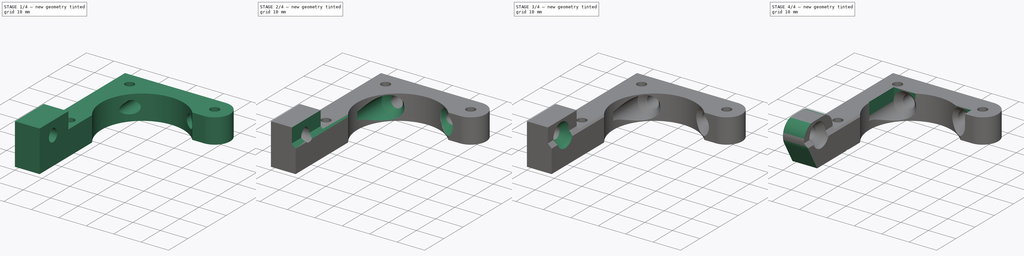
[diagram: build sequence overview — one tinted view per stage of 4, left to right]
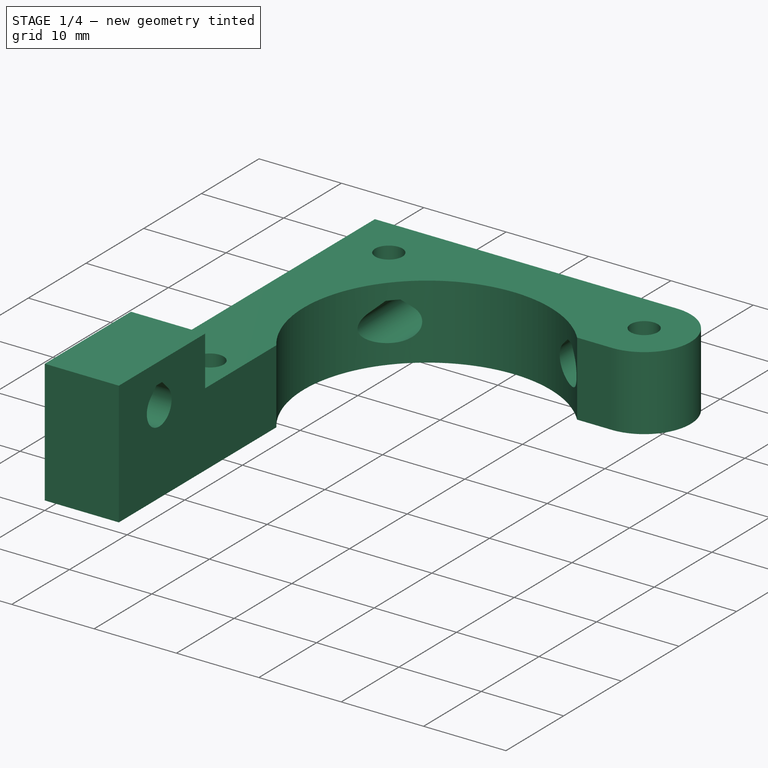
[diagram: stage 1 of 4 — iso view after this stage's code; geometry added in this stage tinted green]
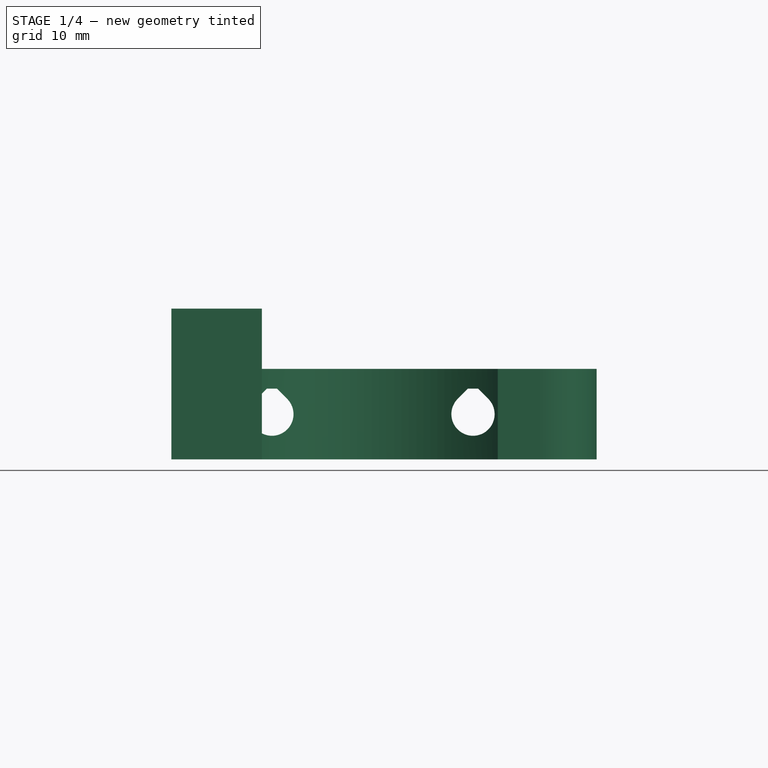
[diagram: stage 1 of 4 — front view after this stage's code; geometry added in this stage tinted green]
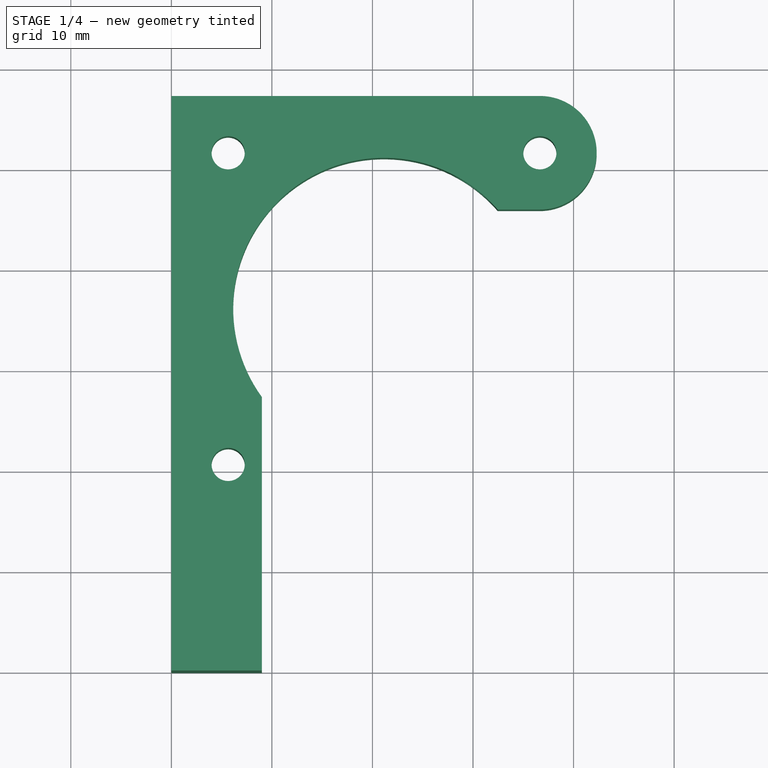
[diagram: stage 1 of 4 — top view after this stage's code; geometry added in this stage tinted green]
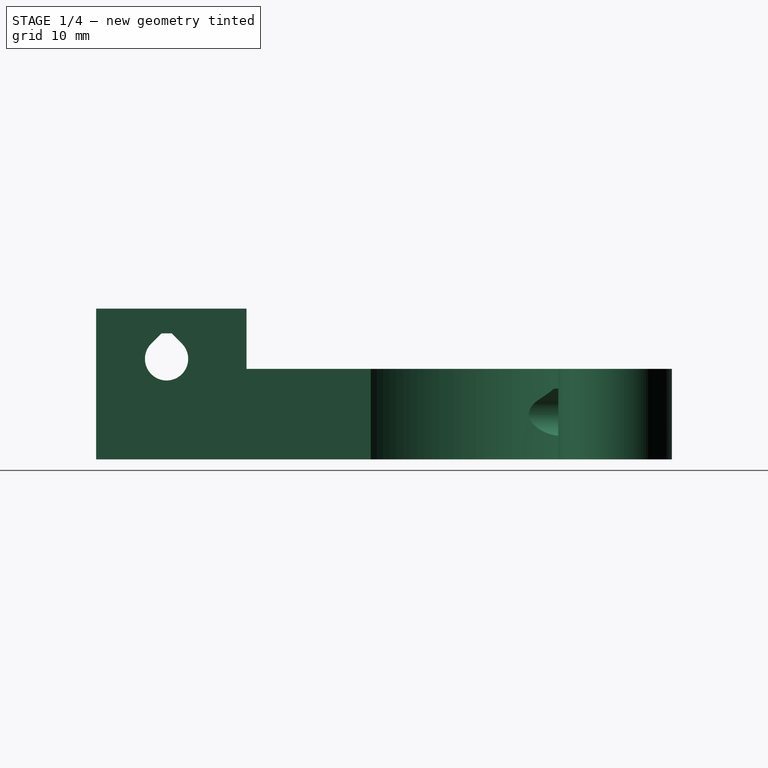
[diagram: stage 1 of 4 — right view after this stage's code; geometry added in this stage tinted green]
FCSTD DOCUMENT  (FreeCAD 0.18R13971 (Git))
Label: 03_469_z-motor-brace
License: All rights reserved
LicenseURL: http://en.wikipedia.org/wiki/All_rights_reserved
objects: Sketcher::SketchObject×28, PartDesign::SubtractiveLoft×8, PartDesign::Pocket×5, PartDesign::Pad×1, Spreadsheet::Sheet×1, PartDesign::Body×1
note: 57 computed .brp shape members not serialized (recipe doc carries the construction recipe); baked Part::Feature solids carry a one-line shape summary decoded from their .brp

FEATURE [Sketcher::SketchObject] Sketch
  MapMode = 5
  Support = -> [XY_Plane]
  expr: Constraints[26] = sheet1.YLegWidth
  expr: Constraints[25] = (sheet1.StepperWidth - sheet1.StepperBoltSpace) / 2
  expr: Constraints[22] = sheet1.M3Clearance / 2
  expr: Constraints[27] = sheet1.dy
  expr: Constraints[18] = sheet1.StepperBoltSpace
  expr: Constraints[40] = (sheet1.StepperWidth - sheet1.StepperBoltSpace) / 2
  sketch-geometry (17):
    g0: LineSegment StartX=0 StartY=0 StartZ=0 EndX=9 EndY=0 EndZ=0
    g1: LineSegment StartX=9 StartY=0 StartZ=0 EndX=9 EndY=27.3036 EndZ=0
    g2: LineSegment StartX=32.4627 StartY=45.95 StartZ=0 EndX=36.65 EndY=45.95 EndZ=0
    g3: LineSegment StartX=36.65 StartY=57.25 StartZ=0 EndX=0 EndY=57.25 EndZ=0
    g4: LineSegment StartX=0 StartY=57.25 StartZ=0 EndX=0 EndY=0 EndZ=0
    g5: Circle CenterX=5.65 CenterY=51.6 CenterZ=0 NormalX=0 NormalY=0 NormalZ=1 AngleXU=0 Radius=1.65
    g6: Circle CenterX=36.65 CenterY=51.6 CenterZ=0 NormalX=0 NormalY=0 NormalZ=1 AngleXU=0 Radius=1.65
    g7: Circle CenterX=5.65 CenterY=20.6 CenterZ=0 NormalX=0 NormalY=0 NormalZ=1 AngleXU=0 Radius=1.65
    g8: LineSegment [constr] StartX=5.65 StartY=51.6 StartZ=0 EndX=36.65 EndY=51.6 EndZ=0
    g9: LineSegment [constr] StartX=36.65 StartY=51.6 StartZ=0 EndX=36.65 EndY=20.6 EndZ=0
    g10: LineSegment [constr] StartX=36.65 StartY=20.6 StartZ=0 EndX=5.65 EndY=20.6 EndZ=0
    g11: LineSegment [constr] StartX=5.65 StartY=20.6 StartZ=0 EndX=5.65 EndY=51.6 EndZ=0
    g12: LineSegment [constr] StartX=21.15 StartY=51.6 StartZ=0 EndX=21.15 EndY=20.6 EndZ=0
    g13: LineSegment [constr] StartX=5.65 StartY=36.1 StartZ=0 EndX=36.65 EndY=36.1 EndZ=0
    g14: GeomPoint X=21.15 Y=36.1 Z=0
    g15: ArcOfCircle CenterX=21.15 CenterY=36.1 CenterZ=0 NormalX=0 NormalY=0 NormalZ=1 AngleXU=0 Radius=15 StartAngle=0.71639 EndAngle=3.76824
    g16: ArcOfCircle CenterX=36.65 CenterY=51.6 CenterZ=0 NormalX=0 NormalY=0 NormalZ=1 AngleXU=0 Radius=5.65 StartAngle=4.71239 EndAngle=7.85398
  constraints (44):
    c: Coincident(g0,g1)
    c: Coincident(g3,g4)
    c: Coincident(g0,g4)
    c: Coincident(g0,g-1)
    c: Vertical(g4)
    c: Vertical(g1)
    c: Horizontal(g0)
    c: Horizontal(g2)
    c: Horizontal(g3)
    c: Coincident(g8,g9)
    c: Coincident(g9,g10)
    c: Coincident(g10,g11)
    c: Coincident(g11,g8)
    c: Horizontal(g8)
    c: Horizontal(g10)
    c: Vertical(g9)
    c: Vertical(g11)
    c: Equal(g11,g8)
    c: Distance(g8) = 31
    c: Coincident(g8,g6)
    c: Coincident(g5,g8)
    c: Coincident(g7,g10)
    c: Radius(g7) = 1.65
    c: Equal(g7,g5)
    c: Equal(g7,g6)
    c: Distance(g5,g4) = 5.65
    c: Distance(g0) = 9
    c: Distance(g4) = 57.25
    c: Symmetric(g7,g5,g13)
    c: Symmetric(g5,g6,g12)
    c: PointOnObject(g13,g11)
    c: PointOnObject(g13,g9)
    c: PointOnObject(g12,g8)
    c: PointOnObject(g12,g10)
    c: PointOnObject(g14,g13)
    c: PointOnObject(g14,g12)
    c: Coincident(g14,g15)
    c: Coincident(g1,g15)
    c: Coincident(g2,g15)
    c: Radius(g15) = 15
    c: Distance(g6,g3) = 5.65
    c: Tangent(g3,g16) = -1.5708
    c: Tangent(g2,g16) = -1.5708
    c: Coincident(g16,g6)
FEATURE [PartDesign::Pad] Pad
  Length = 15
  Length2 = 100
  Profile = -> Sketch
  Type = 0
  expr: Length = sheet1.dz
FEATURE [Sketcher::SketchObject] Sketch001
  AttachmentOffset = pos=(0,0,-36.3) rot=(0,0,1;0rad)
  MapMode = 5
  Placement = pos=(0,36.3,4e-12) rot=(1,0,0;1.5708rad)
  Support = -> [XZ_Plane]
  expr: Constraints[23] = sheet1.ZPostBoltsZ
  expr: Constraints[21] = sheet1.ZPostBoltsSpaceX
  expr: Constraints[22] = sheet1.ZPostBoltsX
  expr: Constraints[7] = 4.2999999999999998 / 2
  sketch-geometry (9):
    g0: ArcOfCircle CenterX=10 CenterY=4.5 CenterZ=0 NormalX=0 NormalY=0 NormalZ=1 AngleXU=0 Radius=2.15 StartAngle=2.35619 EndAngle=7.06858
    g1: ArcOfCircle CenterX=30 CenterY=4.5 CenterZ=0 NormalX=0 NormalY=0 NormalZ=1 AngleXU=0 Radius=2.15 StartAngle=2.35619 EndAngle=7.06858
    g2: LineSegment [constr] StartX=10 StartY=4.5 StartZ=0 EndX=30 EndY=4.5 EndZ=0
    g3: LineSegment StartX=8.47972 StartY=6.02028 StartZ=0 EndX=9.5 EndY=7.04056 EndZ=0
    g4: LineSegment StartX=9.5 StartY=7.04056 StartZ=0 EndX=10.5 EndY=7.04056 EndZ=0
    g5: LineSegment StartX=10.5 StartY=7.04056 StartZ=0 EndX=11.5203 EndY=6.02028 EndZ=0
    g6: LineSegment StartX=28.4797 StartY=6.02028 StartZ=0 EndX=29.5 EndY=7.04056 EndZ=0
    g7: LineSegment StartX=29.5 StartY=7.04056 StartZ=0 EndX=30.5 EndY=7.04056 EndZ=0
    g8: LineSegment StartX=30.5 StartY=7.04056 StartZ=0 EndX=31.5203 EndY=6.02028 EndZ=0
  constraints (24):
    c: Horizontal(g2)
    c: Coincident(g0,g2)
    c: Coincident(g1,g2)
    c: Coincident(g3,g4)
    c: Coincident(g4,g5)
    c: Coincident(g6,g7)
    c: Coincident(g7,g8)
    c: Radius(g0) = 2.15
    c: Equal(g0,g1)
    c: Horizontal(g4)
    c: Horizontal(g7)
    c: Equal(g4,g7)
    c: Distance(g4) = 1
    c: Equal(g3,g5)
    c: Equal(g5,g6)
    c: Equal(g6,g8)
    c: Tangent(g0,g3) = 1.5708
    c: Tangent(g0,g5) = 1.5708
    c: Tangent(g1,g6) = 1.5708
    c: Tangent(g1,g8) = 1.5708
    c: Angle(g3,g4) = 2.35619
    c: Distance(g2) = 20
    c: DistanceX(g-2,g0) = 10
    c: DistanceY(g-1,g0) = 4.5
FEATURE [PartDesign::Pocket] Pocket  label="ZPostBoltHoles"
  BaseFeature = -> Pad
  Length = 5
  Length2 = 100
  Profile = -> Sketch001
  Type = 1
FEATURE [Sketcher::SketchObject] Sketch002
  AttachmentOffset = pos=(0,0,9) rot=(0,0,1;0rad)
  MapMode = 5
  Placement = pos=(0,0,9) rot=(0,0,1;0rad)
  Support = -> [XY_Plane]
  expr: Constraints[26] = sheet1.StepperWidth
  expr: Constraints[10] = sheet1.StepperBoltSpace
  expr: Constraints[8] = sheet1.StepperBoltX
  expr: Constraints[11] = sheet1.dy - (sheet1.StepperWidth - sheet1.StepperBoltSpace) / 2
  sketch-geometry (10):
    g0: LineSegment [constr] StartX=6 StartY=51.6 StartZ=0 EndX=37 EndY=51.6 EndZ=0
    g1: LineSegment [constr] StartX=37 StartY=51.6 StartZ=0 EndX=37 EndY=20.6 EndZ=0
    g2: LineSegment [constr] StartX=37 StartY=20.6 StartZ=0 EndX=6 EndY=20.6 EndZ=0
    g3: LineSegment [constr] StartX=6 StartY=20.6 StartZ=0 EndX=6 EndY=51.6 EndZ=0
    g4: LineSegment [constr] StartX=21.5 StartY=51.6 StartZ=0 EndX=21.5 EndY=20.6 EndZ=0
    g5: LineSegment [constr] StartX=6 StartY=36.1 StartZ=0 EndX=37 EndY=36.1 EndZ=0
    g6: LineSegment StartX=0 StartY=57.25 StartZ=0 EndX=43 EndY=57.25 EndZ=0
    g7: LineSegment StartX=43 StartY=57.25 StartZ=0 EndX=43 EndY=14.95 EndZ=0
    g8: LineSegment StartX=43 StartY=14.95 StartZ=0 EndX=0 EndY=14.95 EndZ=0
    g9: LineSegment StartX=0 StartY=14.95 StartZ=0 EndX=0 EndY=57.25 EndZ=0
  constraints (28):
    c: Coincident(g0,g1)
    c: Coincident(g1,g2)
    c: Coincident(g2,g3)
    c: Coincident(g3,g0)
    c: Horizontal(g0)
    c: Horizontal(g2)
    c: Vertical(g1)
    c: Vertical(g3)
    c: DistanceX(g-2,g0) = 6
    c: Equal(g0,g3)
    c: Distance(g1) = 31
    c: DistanceY(g-1,g0) = 51.6
    c: Symmetric(g2,g0,g5)
    c: Symmetric(g0,g0,g4)
    c: PointOnObject(g5,g3)
    c: PointOnObject(g4,g0)
    c: PointOnObject(g5,g1)
    c: PointOnObject(g4,g2)
    c: Coincident(g6,g7)
    c: Coincident(g7,g8)
    c: Coincident(g8,g9)
    c: Coincident(g9,g6)
    c: Horizontal(g8)
    c: Vertical(g9)
    c: Symmetric(g6,g6,g4)
    c: Symmetric(g6,g7,g5)
    c: Distance(g7) = 42.3
    c: PointOnObject(g6,g-2)
FEATURE [PartDesign::Pocket] Pocket001  label="MotorFaceRecess"
  BaseFeature = -> Pocket
  Length = 5
  Length2 = 100
  Profile = -> Sketch002
  Reversed = true
  Type = 1
FEATURE [Sketcher::SketchObject] Sketch003
  MapMode = 5
  Placement = pos=(0,0,0) rot=(0.57735,0.57735,0.57735;2.0944rad)
  Support = -> [YZ_Plane]
  expr: Constraints[8] = sheet1.YRailBoltZ
  expr: Constraints[9] = sheet1.YRailBoltY
  expr: Constraints[10] = sheet1.M4Clearance / 2
  sketch-geometry (4):
    g0: ArcOfCircle CenterX=7 CenterY=10 CenterZ=0 NormalX=0 NormalY=0 NormalZ=1 AngleXU=0 Radius=2.15 StartAngle=2.35619 EndAngle=7.06858
    g1: LineSegment StartX=5.47972 StartY=11.5203 StartZ=0 EndX=6.5 EndY=12.5406 EndZ=0
    g2: LineSegment StartX=6.5 StartY=12.5406 StartZ=0 EndX=7.5 EndY=12.5406 EndZ=0
    g3: LineSegment StartX=7.5 StartY=12.5406 StartZ=0 EndX=8.52028 EndY=11.5203 EndZ=0
  constraints (11):
    c: Coincident(g1,g2)
    c: Coincident(g2,g3)
    c: Equal(g1,g3)
    c: Tangent(g0,g1) = 1.5708
    c: Tangent(g0,g3) = 1.5708
    c: Horizontal(g2)
    c: Distance(g2) = 1
    c: Angle(g1,g2) = 2.35619
    c: DistanceY(g-1,g0) = 10
    c: DistanceX(g-2,g0) = 7
    c: Radius(g0) = 2.15
FEATURE [PartDesign::Pocket] Pocket002  label="YLegBoltHole"
  BaseFeature = -> Pocket001
  Length = 5
  Length2 = 100
  Profile = -> Sketch003
  Reversed = true
  Type = 1
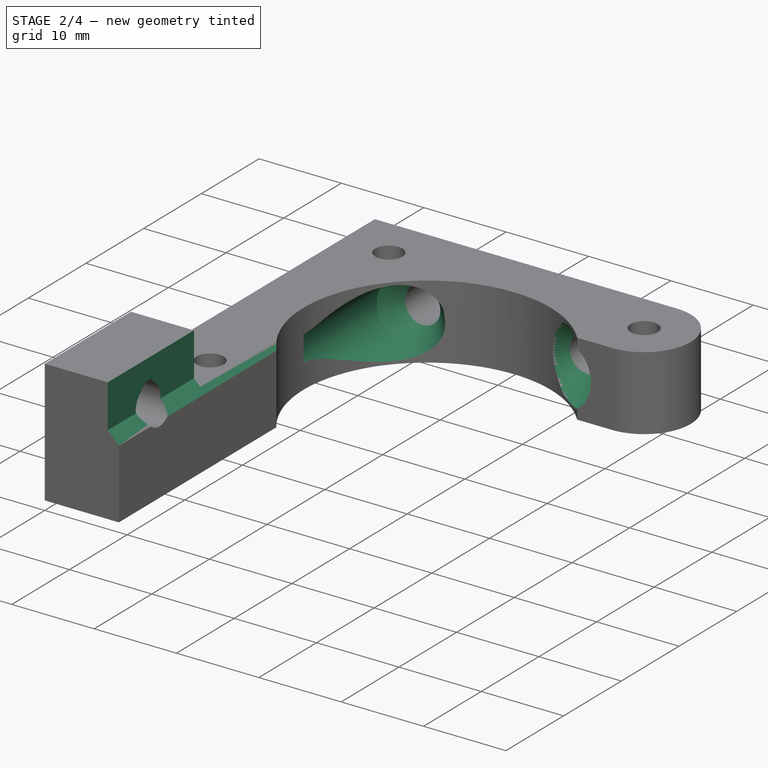
[diagram: stage 2 of 4 — iso view after this stage's code; geometry added in this stage tinted green]
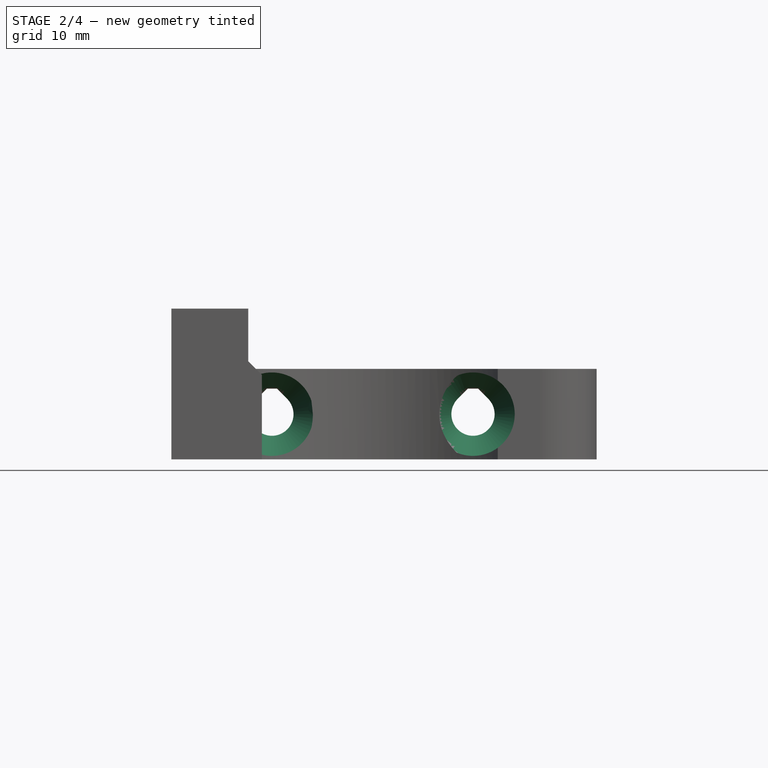
[diagram: stage 2 of 4 — front view after this stage's code; geometry added in this stage tinted green]
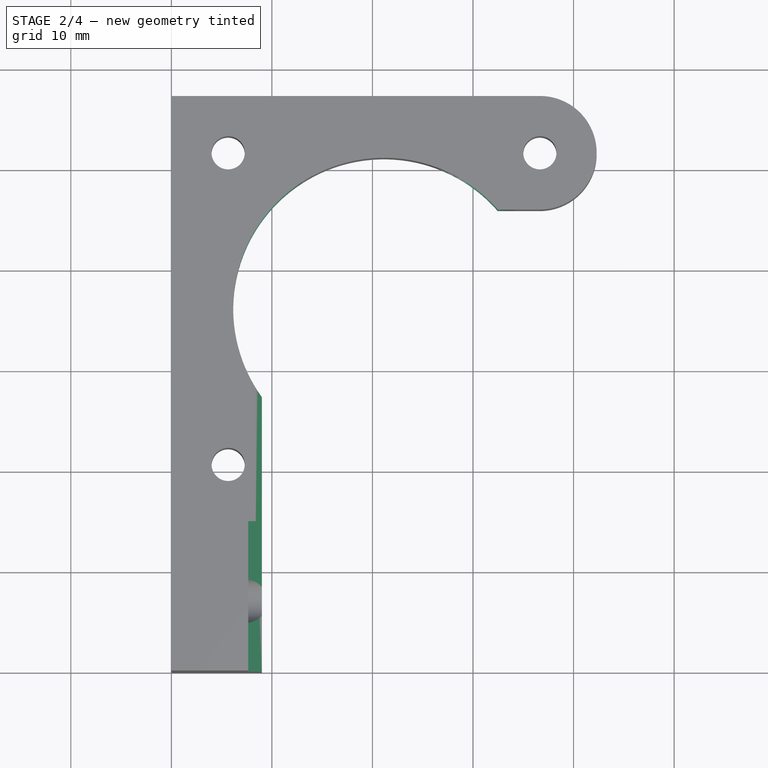
[diagram: stage 2 of 4 — top view after this stage's code; geometry added in this stage tinted green]
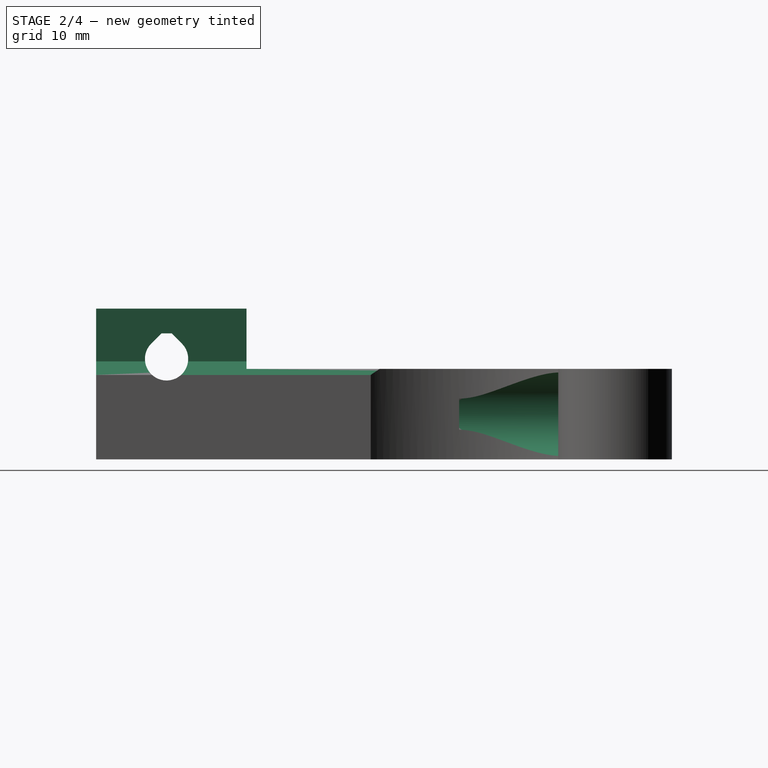
[diagram: stage 2 of 4 — right view after this stage's code; geometry added in this stage tinted green]
FEATURE [Sketcher::SketchObject] Sketch004
  MapMode = 5
  Placement = pos=(0,0,0) rot=(1,0,0;1.5708rad)
  Support = -> [XZ_Plane]
  sketch-geometry (5):
    g0: LineSegment StartX=7.65 StartY=15 StartZ=0 EndX=7.65 EndY=9.75 EndZ=0
    g1: LineSegment StartX=7.65 StartY=9.75 StartZ=0 EndX=9 EndY=8.4 EndZ=0
    g2: LineSegment StartX=9 StartY=8.4 StartZ=0 EndX=10 EndY=8.4 EndZ=0
    g3: LineSegment StartX=10 StartY=8.4 StartZ=0 EndX=10 EndY=15 EndZ=0
    g4: LineSegment StartX=10 StartY=15 StartZ=0 EndX=7.65 EndY=15 EndZ=0
  constraints (15):
    c: Coincident(g0,g1)
    c: Coincident(g1,g2)
    c: Coincident(g2,g3)
    c: Coincident(g3,g4)
    c: Horizontal(g4)
    c: Horizontal(g2)
    c: Vertical(g0)
    c: Vertical(g3)
    c: Angle(g2,g1) = 2.35619
    c: DistanceX(g-2,g0) = 7.65
    c: DistanceY(g-1,g0) = 9.75
    c: DistanceX(g-2,g1) = 9
    c: Coincident(g0,g4)
    c: DistanceY(g-1,g0) = 15
    c: DistanceX(g-2,g3) = 10
FEATURE [PartDesign::Pocket] Pocket003  label="YLegUpperChamfer"
  BaseFeature = -> Pocket002
  Length = 41.75
  Length2 = 100
  Profile = -> Sketch004
  Type = 0
FEATURE [Spreadsheet::Sheet] Spreadsheet  label="sheet1"
  cells = A1=dx; B1(dx)==6 + 31 + 5.6500000000000004; A2=dy; B2(dy)=57.25; A3=dz; B3(dz)=15; A4=StepperWidth; B4(StepperWidth)=42.299999999999997; A5=StepperBoltSpace; B5(StepperBoltSpace)=31; A6=M3Clearance; B6(M3Clearance)=3.2999999999999998; A7=M4Clearance; B7(M4Clearance)=4.2999999999999998; A8=StepperFaceRecess; B8(StepperFaceRecess)=6; A9=YLegWidth; B9(YLegWidth)=9; A10=StepperBoltX; B10(StepperBoltX)=6; A11=ZPostBoltsX; B11(ZPostBoltsX)=10; A12=ZPostBoltsSpaceX; B12(ZPostBoltsSpaceX)=20; A13=ZPostBoltsZ; B13(ZPostBoltsZ)=4.5; A14=YRailBoltY; B14(YRailBoltY)=7; A15=YRailBoltZ; B15(YRailBoltZ)=10; A16=YRailCounterSinkTo; B16(YRailCounterSinkTo)=5.5; A17=ZPostCounterSinkTo; B17(ZPostCounterSinkTo)=6; A18=MotorCounterSinkDepth; B18(MotorCounterSinkDepth)=1.8; A19=StepperBoltZPostYSpace; B19(StepperBoltZPostYSpace)==(sheet1.StepperWidth - sheet1.StepperBoltSpace) / 2; A20=StepperBoltYPostXSpace; B20(StepperBoltYPostXSpace)==(sheet1.StepperWidth - sheet1.StepperBoltSpace) / 2
FEATURE [Sketcher::SketchObject] Sketch005
  AttachmentOffset = pos=(0,0,-51.25) rot=(0,0,1;0rad)
  MapMode = 5
  Placement = pos=(0,51.25,5e-12) rot=(1,0,0;1.5708rad)
  Support = -> [XZ_Plane]
  expr: AttachmentOffset.Base.z = -sheet1.dy + sheet1.ZPostCounterSinkTo
  expr: Constraints[2] = sheet1.ZPostBoltsX
  expr: Constraints[1] = sheet1.ZPostBoltsZ
  expr: Constraints[0] = sheet1.M4Clearance / 2
  sketch-geometry (1):
    g0: Circle CenterX=10 CenterY=4.5 CenterZ=0 NormalX=0 NormalY=0 NormalZ=1 AngleXU=0 Radius=2.15
  constraints (3):
    c: Radius(g0) = 2.15
    c: DistanceY(g-1,g0) = 4.5
    c: DistanceX(g-2,g0) = 10
FEATURE [Sketcher::SketchObject] Sketch006
  AttachmentOffset = pos=(0,0,-49.25) rot=(0,0,1;0rad)
  MapMode = 5
  Placement = pos=(0,49.25,5e-12) rot=(1,0,0;1.5708rad)
  Support = -> [XZ_Plane]
  expr: AttachmentOffset.Base.z = -sheet1.dy + sheet1.ZPostCounterSinkTo + 2
  expr: Constraints[2] = sheet1.ZPostBoltsX
  expr: Constraints[1] = sheet1.ZPostBoltsZ
  expr: Constraints[0] = 2 + sheet1.M4Clearance / 2
  sketch-geometry (1):
    g0: Circle CenterX=10 CenterY=4.5 CenterZ=0 NormalX=0 NormalY=0 NormalZ=1 AngleXU=0 Radius=4.15
  constraints (3):
    c: Radius(g0) = 4.15
    c: DistanceY(g-1,g0) = 4.5
    c: DistanceX(g-2,g0) = 10
FEATURE [Sketcher::SketchObject] Sketch007
  AttachmentOffset = pos=(0,0,-36.1) rot=(0,0,1;0rad)
  MapMode = 5
  Placement = pos=(0,36.1,4e-12) rot=(1,0,0;1.5708rad)
  Support = -> [XZ_Plane]
  expr: AttachmentOffset.Base.z = -sheet1.dy + sheet1.StepperWidth / 2
  expr: Constraints[2] = sheet1.ZPostBoltsX
  expr: Constraints[1] = sheet1.ZPostBoltsZ
  expr: Constraints[0] = 2 + sheet1.M4Clearance / 2
  sketch-geometry (1):
    g0: Circle CenterX=10 CenterY=4.5 CenterZ=0 NormalX=0 NormalY=0 NormalZ=1 AngleXU=0 Radius=4.15
  constraints (3):
    c: Radius(g0) = 4.15
    c: DistanceY(g-1,g0) = 4.5
    c: DistanceX(g-2,g0) = 10
FEATURE [PartDesign::SubtractiveLoft] SubtractiveLoft
  BaseFeature = -> Pocket003
  Closed = true
  Profile = -> Sketch005
  Ruled = true
  Sections = -> [Sketch006,Sketch007]
FEATURE [Sketcher::SketchObject] Sketch008
  AttachmentOffset = pos=(0,0,-51.25) rot=(0,0,1;0rad)
  MapMode = 5
  Placement = pos=(0,51.25,5e-12) rot=(1,0,0;1.5708rad)
  Support = -> [XZ_Plane]
  expr: AttachmentOffset.Base.z = -sheet1.dy + sheet1.ZPostCounterSinkTo
  expr: Constraints[2] = sheet1.ZPostBoltsX + sheet1.ZPostBoltsSpaceX
  expr: Constraints[1] = sheet1.ZPostBoltsZ
  expr: Constraints[0] = sheet1.M4Clearance / 2
  sketch-geometry (1):
    g0: Circle CenterX=30 CenterY=4.5 CenterZ=0 NormalX=0 NormalY=0 NormalZ=1 AngleXU=0 Radius=2.15
  constraints (3):
    c: Radius(g0) = 2.15
    c: DistanceY(g-1,g0) = 4.5
    c: DistanceX(g-2,g0) = 30
FEATURE [Sketcher::SketchObject] Sketch009
  AttachmentOffset = pos=(0,0,-36.1) rot=(0,0,1;0rad)
  MapMode = 5
  Placement = pos=(0,36.1,4e-12) rot=(1,0,0;1.5708rad)
  Support = -> [XZ_Plane]
  expr: AttachmentOffset.Base.z = -sheet1.dy + sheet1.StepperWidth / 2
  expr: Constraints[2] = sheet1.ZPostBoltsX + sheet1.ZPostBoltsSpaceX
  expr: Constraints[1] = sheet1.ZPostBoltsZ
  expr: Constraints[0] = 2 + sheet1.M4Clearance / 2
  sketch-geometry (1):
    g0: Circle CenterX=30 CenterY=4.5 CenterZ=0 NormalX=0 NormalY=0 NormalZ=1 AngleXU=0 Radius=4.15
  constraints (3):
    c: Radius(g0) = 4.15
    c: DistanceY(g-1,g0) = 4.5
    c: DistanceX(g-2,g0) = 30
FEATURE [Sketcher::SketchObject] Sketch010
  AttachmentOffset = pos=(0,0,-49.25) rot=(0,0,1;0rad)
  MapMode = 5
  Placement = pos=(0,49.25,5e-12) rot=(1,0,0;1.5708rad)
  Support = -> [XZ_Plane]
  expr: AttachmentOffset.Base.z = -sheet1.dy + sheet1.ZPostCounterSinkTo + 2
  expr: Constraints[2] = sheet1.ZPostBoltsX + sheet1.ZPostBoltsSpaceX
  expr: Constraints[1] = sheet1.ZPostBoltsZ
  expr: Constraints[0] = 2 + sheet1.M4Clearance / 2
  sketch-geometry (1):
    g0: Circle CenterX=30 CenterY=4.5 CenterZ=0 NormalX=0 NormalY=0 NormalZ=1 AngleXU=0 Radius=4.15
  constraints (3):
    c: Radius(g0) = 4.15
    c: DistanceY(g-1,g0) = 4.5
    c: DistanceX(g-2,g0) = 30
FEATURE [PartDesign::SubtractiveLoft] SubtractiveLoft001
  BaseFeature = -> SubtractiveLoft
  Closed = true
  Profile = -> Sketch008
  Ruled = true
  Sections = -> [Sketch010,Sketch009]
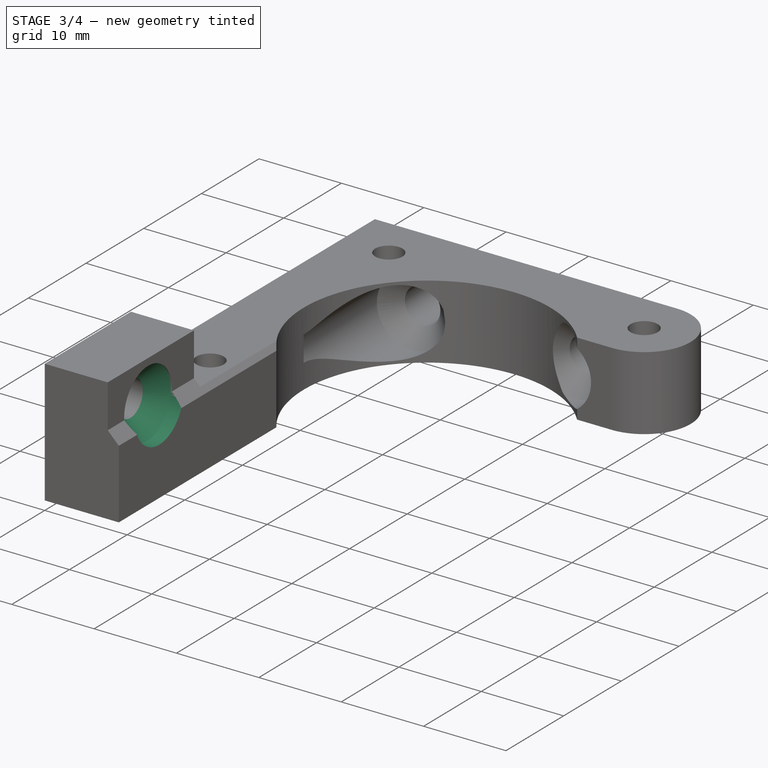
[diagram: stage 3 of 4 — iso view after this stage's code; geometry added in this stage tinted green]
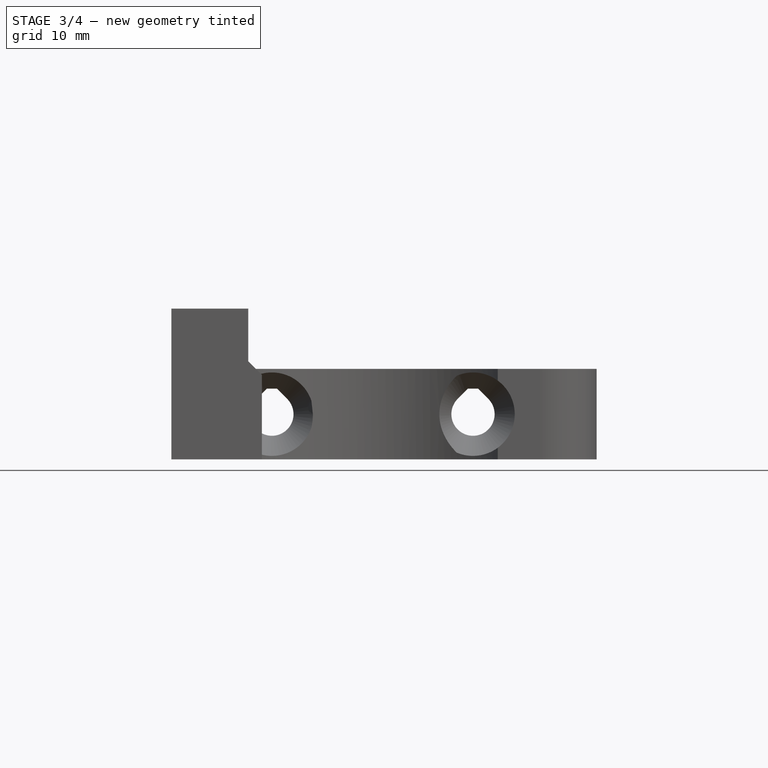
[diagram: stage 3 of 4 — front view after this stage's code; geometry added in this stage tinted green]
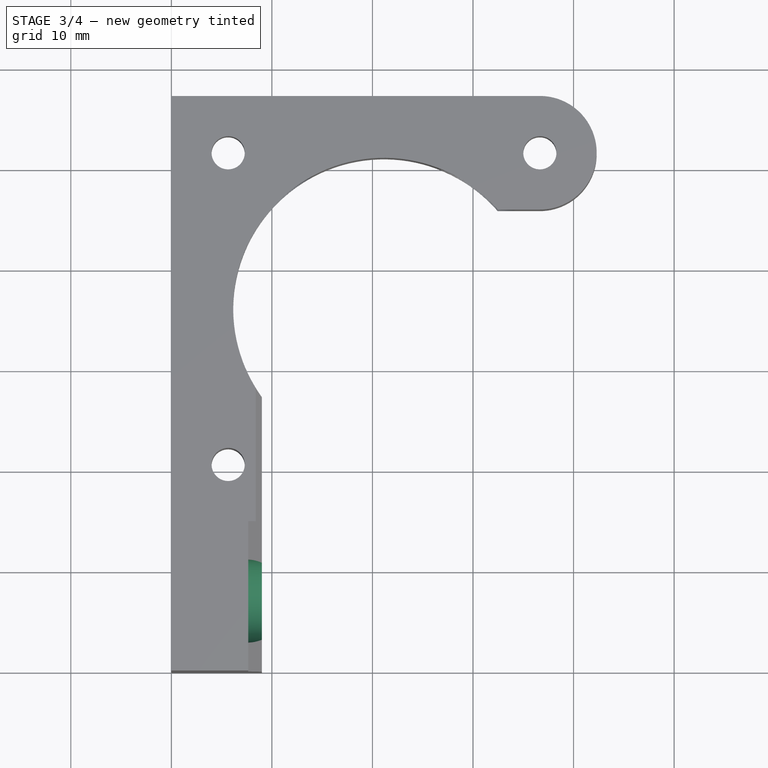
[diagram: stage 3 of 4 — top view after this stage's code; geometry added in this stage tinted green]
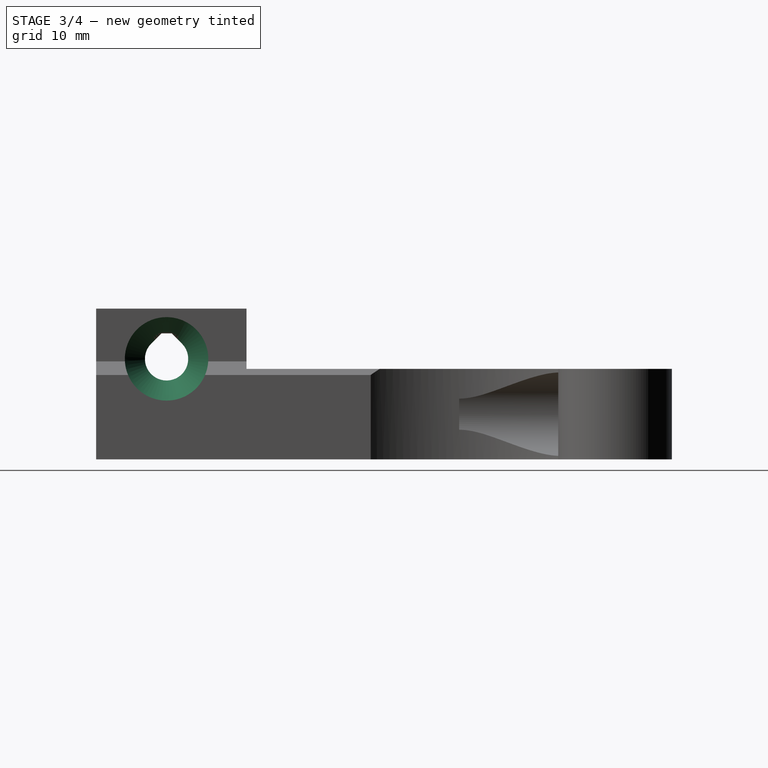
[diagram: stage 3 of 4 — right view after this stage's code; geometry added in this stage tinted green]
FEATURE [Sketcher::SketchObject] Sketch011
  AttachmentOffset = pos=(0,0,5.5) rot=(0,0,1;0rad)
  MapMode = 5
  Placement = pos=(5.5,-1e-12,1e-12) rot=(0.57735,0.57735,0.57735;2.0944rad)
  Support = -> [YZ_Plane]
  expr: AttachmentOffset.Base.z = sheet1.YRailCounterSinkTo
  expr: Constraints[2] = sheet1.YRailBoltY
  expr: Constraints[1] = sheet1.YRailBoltZ
  expr: Constraints[0] = sheet1.M4Clearance / 2
  sketch-geometry (1):
    g0: Circle CenterX=7 CenterY=10 CenterZ=0 NormalX=0 NormalY=0 NormalZ=1 AngleXU=0 Radius=2.15
  constraints (3):
    c: Radius(g0) = 2.15
    c: DistanceY(g-1,g0) = 10
    c: DistanceX(g-2,g0) = 7
FEATURE [Sketcher::SketchObject] Sketch012
  AttachmentOffset = pos=(0,0,7.5) rot=(0,0,1;0rad)
  MapMode = 5
  Placement = pos=(7.5,-1e-12,1e-12) rot=(0.57735,0.57735,0.57735;2.0944rad)
  Support = -> [YZ_Plane]
  expr: AttachmentOffset.Base.z = sheet1.YRailCounterSinkTo + 2
  expr: Constraints[2] = sheet1.YRailBoltY
  expr: Constraints[1] = sheet1.YRailBoltZ
  expr: Constraints[0] = 2 + sheet1.M4Clearance / 2
  sketch-geometry (1):
    g0: Circle CenterX=7 CenterY=10 CenterZ=0 NormalX=0 NormalY=0 NormalZ=1 AngleXU=0 Radius=4.15
  constraints (3):
    c: Radius(g0) = 4.15
    c: DistanceY(g-1,g0) = 10
    c: DistanceX(g-2,g0) = 7
FEATURE [Sketcher::SketchObject] Sketch013
  AttachmentOffset = pos=(0,0,15.5) rot=(0,0,1;0rad)
  MapMode = 5
  Placement = pos=(15.5,-2e-12,2e-12) rot=(0.57735,0.57735,0.57735;2.0944rad)
  Support = -> [YZ_Plane]
  expr: AttachmentOffset.Base.z = sheet1.YRailCounterSinkTo + 10
  expr: Constraints[2] = sheet1.YRailBoltY
  expr: Constraints[1] = sheet1.YRailBoltZ
  expr: Constraints[0] = 2 + sheet1.M4Clearance / 2
  sketch-geometry (1):
    g0: Circle CenterX=7 CenterY=10 CenterZ=0 NormalX=0 NormalY=0 NormalZ=1 AngleXU=0 Radius=4.15
  constraints (3):
    c: Radius(g0) = 4.15
    c: DistanceY(g-1,g0) = 10
    c: DistanceX(g-2,g0) = 7
FEATURE [PartDesign::SubtractiveLoft] SubtractiveLoft002
  BaseFeature = -> SubtractiveLoft001
  Closed = true
  Profile = -> Sketch011
  Ruled = true
  Sections = -> [Sketch012,Sketch013]
FEATURE [Sketcher::SketchObject] Sketch014
  AttachmentOffset = pos=(0,0,1.8) rot=(0,0,1;0rad)
  MapMode = 5
  Placement = pos=(0,0,1.8) rot=(0,0,1;0rad)
  Support = -> [XY_Plane]
  expr: AttachmentOffset.Base.z = sheet1.MotorCounterSinkDepth
  expr: Constraints[5] = sheet1.StepperBoltZPostYSpace
  expr: Constraints[4] = sheet1.dy
  expr: Constraints[6] = sheet1.M3Clearance / 2
  expr: Constraints[2] = sheet1.dx
  expr: Constraints[0] = sheet1.StepperBoltYPostXSpace
  sketch-geometry (2):
    g0: Circle CenterX=5.65 CenterY=51.6 CenterZ=0 NormalX=0 NormalY=0 NormalZ=1 AngleXU=0 Radius=1.65
    g1: LineSegment [constr] StartX=0 StartY=57.25 StartZ=0 EndX=42.65 EndY=57.25 EndZ=0
  constraints (7):
    c: DistanceX(g-2,g0) = 5.65
    c: PointOnObject(g1,g-2)
    c: Distance(g1) = 42.65
    c: Horizontal(g1)
    c: DistanceY(g-1,g1) = 57.25
    c: Distance(g0,g1) = 5.65
    c: Radius(g0) = 1.65
FEATURE [Sketcher::SketchObject] Sketch015
  MapMode = 5
  Support = -> [XY_Plane]
  expr: Constraints[5] = sheet1.StepperBoltZPostYSpace
  expr: Constraints[4] = sheet1.dy
  expr: Constraints[6] = sheet1.M3Clearance / 2 + sheet1.MotorCounterSinkDepth
  expr: Constraints[2] = sheet1.dx
  expr: Constraints[0] = sheet1.StepperBoltYPostXSpace
  sketch-geometry (2):
    g0: Circle CenterX=5.65 CenterY=51.6 CenterZ=0 NormalX=0 NormalY=0 NormalZ=1 AngleXU=0 Radius=3.45
    g1: LineSegment [constr] StartX=0 StartY=57.25 StartZ=0 EndX=42.65 EndY=57.25 EndZ=0
  constraints (7):
    c: DistanceX(g-2,g0) = 5.65
    c: PointOnObject(g1,g-2)
    c: Distance(g1) = 42.65
    c: Horizontal(g1)
    c: DistanceY(g-1,g1) = 57.25
    c: Distance(g0,g1) = 5.65
    c: Radius(g0) = 3.45
FEATURE [Sketcher::SketchObject] Sketch016
  AttachmentOffset = pos=(0,0,-1.8) rot=(0,0,1;0rad)
  MapMode = 5
  Placement = pos=(0,0,-1.8) rot=(0,0,1;0rad)
  Support = -> [XY_Plane]
  expr: AttachmentOffset.Base.z = -sheet1.MotorCounterSinkDepth
  expr: Constraints[5] = sheet1.StepperBoltZPostYSpace
  expr: Constraints[4] = sheet1.dy
  expr: Constraints[6] = sheet1.M3Clearance / 2 + sheet1.MotorCounterSinkDepth
  expr: Constraints[2] = sheet1.dx
  expr: Constraints[0] = sheet1.StepperBoltYPostXSpace
  sketch-geometry (2):
    g0: Circle CenterX=5.65 CenterY=51.6 CenterZ=0 NormalX=0 NormalY=0 NormalZ=1 AngleXU=0 Radius=3.45
    g1: LineSegment [constr] StartX=0 StartY=57.25 StartZ=0 EndX=42.65 EndY=57.25 EndZ=0
  constraints (7):
    c: DistanceX(g-2,g0) = 5.65
    c: PointOnObject(g1,g-2)
    c: Distance(g1) = 42.65
    c: Horizontal(g1)
    c: DistanceY(g-1,g1) = 57.25
    c: Distance(g0,g1) = 5.65
    c: Radius(g0) = 3.45
FEATURE [PartDesign::SubtractiveLoft] SubtractiveLoft003
  BaseFeature = -> SubtractiveLoft002
  Closed = true
  Profile = -> Sketch014
  Ruled = true
  Sections = -> [Sketch015,Sketch016]
FEATURE [Sketcher::SketchObject] Sketch017
  AttachmentOffset = pos=(0,0,1.8) rot=(0,0,1;0rad)
  MapMode = 5
  Placement = pos=(0,0,1.8) rot=(0,0,1;0rad)
  Support = -> [XY_Plane]
  expr: AttachmentOffset.Base.z = sheet1.MotorCounterSinkDepth
  expr: Constraints[5] = sheet1.StepperBoltZPostYSpace
  expr: Constraints[4] = sheet1.dy
  expr: Constraints[6] = sheet1.M3Clearance / 2
  expr: Constraints[2] = sheet1.dx
  expr: Constraints[0] = sheet1.StepperBoltYPostXSpace + sheet1.StepperBoltSpace
  sketch-geometry (2):
    g0: Circle CenterX=36.65 CenterY=51.6 CenterZ=0 NormalX=0 NormalY=0 NormalZ=1 AngleXU=0 Radius=1.65
    g1: LineSegment [constr] StartX=0 StartY=57.25 StartZ=0 EndX=42.65 EndY=57.25 EndZ=0
  constraints (7):
    c: DistanceX(g-2,g0) = 36.65
    c: PointOnObject(g1,g-2)
    c: Distance(g1) = 42.65
    c: Horizontal(g1)
    c: DistanceY(g-1,g1) = 57.25
    c: Distance(g0,g1) = 5.65
    c: Radius(g0) = 1.65
FEATURE [Sketcher::SketchObject] Sketch018
  MapMode = 5
  Support = -> [XY_Plane]
  expr: Constraints[5] = sheet1.StepperBoltZPostYSpace
  expr: Constraints[4] = sheet1.dy
  expr: Constraints[6] = sheet1.M3Clearance / 2 + sheet1.MotorCounterSinkDepth
  expr: Constraints[2] = sheet1.dx
  expr: Constraints[0] = sheet1.StepperBoltYPostXSpace + sheet1.StepperBoltSpace
  sketch-geometry (2):
    g0: Circle CenterX=36.65 CenterY=51.6 CenterZ=0 NormalX=0 NormalY=0 NormalZ=1 AngleXU=0 Radius=3.45
    g1: LineSegment [constr] StartX=0 StartY=57.25 StartZ=0 EndX=42.65 EndY=57.25 EndZ=0
  constraints (7):
    c: DistanceX(g-2,g0) = 36.65
    c: PointOnObject(g1,g-2)
    c: Distance(g1) = 42.65
    c: Horizontal(g1)
    c: DistanceY(g-1,g1) = 57.25
    c: Distance(g0,g1) = 5.65
    c: Radius(g0) = 3.45
FEATURE [Sketcher::SketchObject] Sketch019
  AttachmentOffset = pos=(0,0,-1.8) rot=(0,0,1;0rad)
  MapMode = 5
  Placement = pos=(0,0,-1.8) rot=(0,0,1;0rad)
  Support = -> [XY_Plane]
  expr: AttachmentOffset.Base.z = -sheet1.MotorCounterSinkDepth
  expr: Constraints[5] = sheet1.StepperBoltZPostYSpace
  expr: Constraints[4] = sheet1.dy
  expr: Constraints[6] = sheet1.M3Clearance / 2 + sheet1.MotorCounterSinkDepth
  expr: Constraints[2] = sheet1.dx
  expr: Constraints[0] = sheet1.StepperBoltYPostXSpace + sheet1.StepperBoltSpace
  sketch-geometry (2):
    g0: Circle CenterX=36.65 CenterY=51.6 CenterZ=0 NormalX=0 NormalY=0 NormalZ=1 AngleXU=0 Radius=3.45
    g1: LineSegment [constr] StartX=0 StartY=57.25 StartZ=0 EndX=42.65 EndY=57.25 EndZ=0
  constraints (7):
    c: DistanceX(g-2,g0) = 36.65
    c: PointOnObject(g1,g-2)
    c: Distance(g1) = 42.65
    c: Horizontal(g1)
    c: DistanceY(g-1,g1) = 57.25
    c: Distance(g0,g1) = 5.65
    c: Radius(g0) = 3.45
FEATURE [PartDesign::SubtractiveLoft] SubtractiveLoft004
  BaseFeature = -> SubtractiveLoft003
  Closed = true
  Profile = -> Sketch017
  Ruled = true
  Sections = -> [Sketch018,Sketch019]
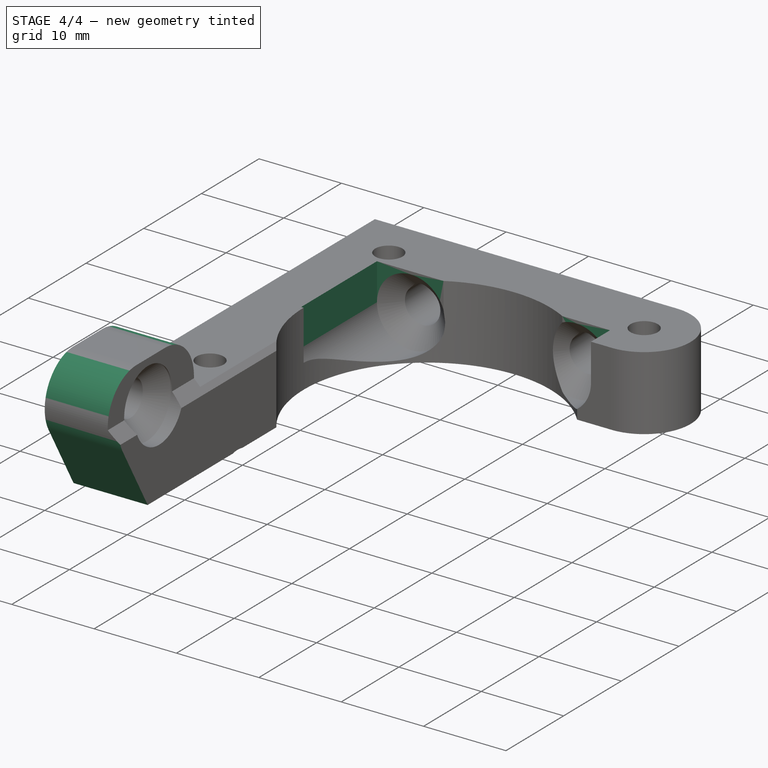
[diagram: stage 4 of 4 — iso view after this stage's code; geometry added in this stage tinted green]
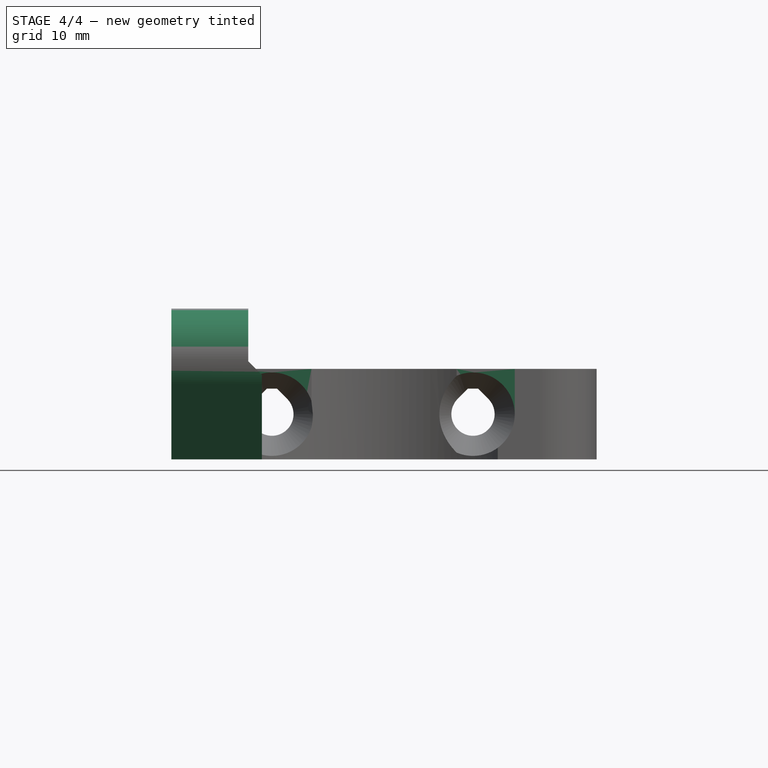
[diagram: stage 4 of 4 — front view after this stage's code; geometry added in this stage tinted green]
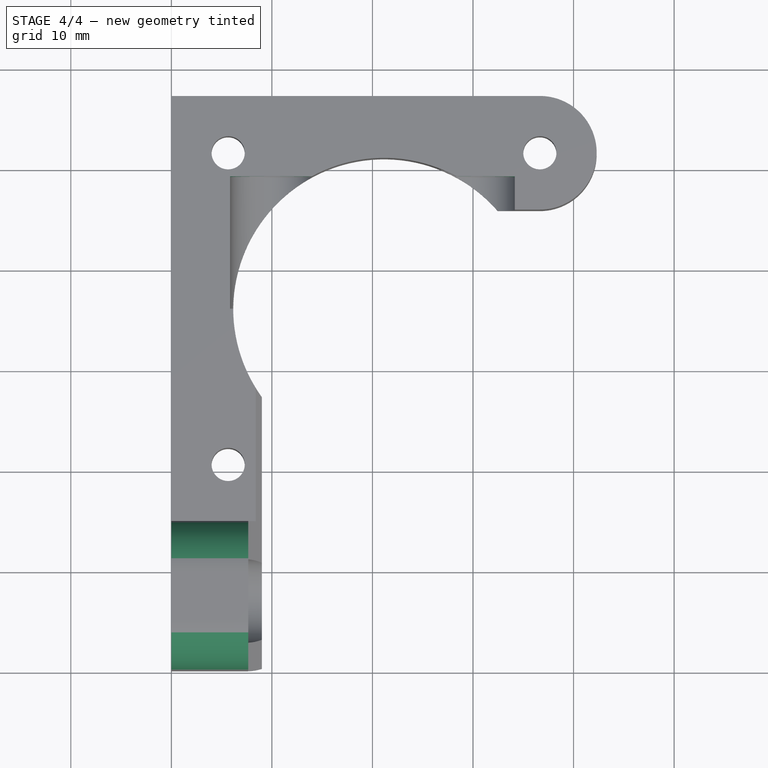
[diagram: stage 4 of 4 — top view after this stage's code; geometry added in this stage tinted green]
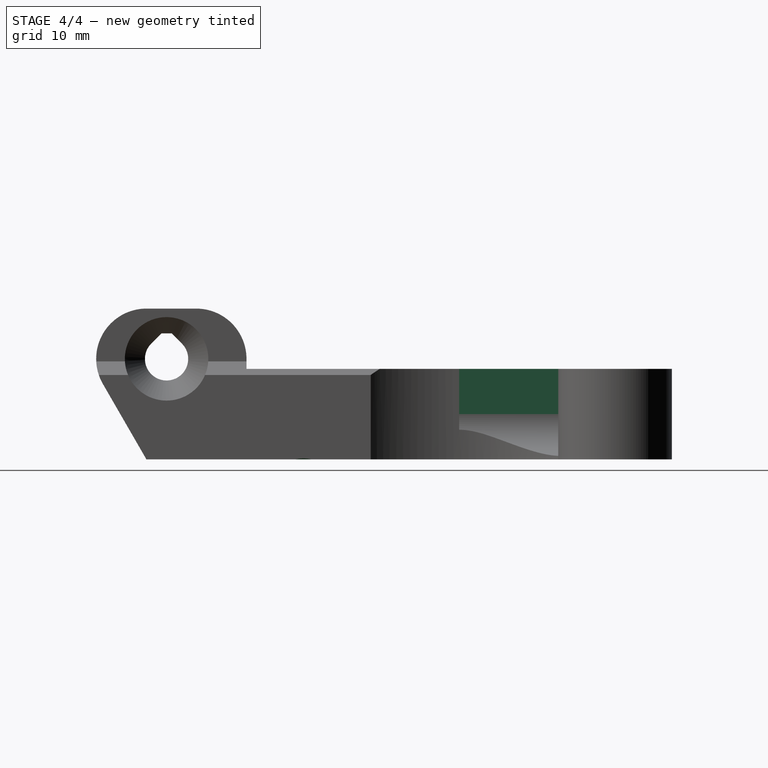
[diagram: stage 4 of 4 — right view after this stage's code; geometry added in this stage tinted green]
FEATURE [Sketcher::SketchObject] Sketch020
  AttachmentOffset = pos=(0,0,1.8) rot=(0,0,1;0rad)
  MapMode = 5
  Placement = pos=(0,0,1.8) rot=(0,0,1;0rad)
  Support = -> [XY_Plane]
  expr: AttachmentOffset.Base.z = sheet1.MotorCounterSinkDepth
  expr: Constraints[5] = sheet1.StepperBoltZPostYSpace + sheet1.StepperBoltSpace
  expr: Constraints[4] = sheet1.dy
  expr: Constraints[6] = sheet1.M3Clearance / 2
  expr: Constraints[2] = sheet1.dx
  expr: Constraints[0] = sheet1.StepperBoltYPostXSpace
  sketch-geometry (2):
    g0: Circle CenterX=5.65 CenterY=20.6 CenterZ=0 NormalX=0 NormalY=0 NormalZ=1 AngleXU=0 Radius=1.65
    g1: LineSegment [constr] StartX=0 StartY=57.25 StartZ=0 EndX=42.65 EndY=57.25 EndZ=0
  constraints (7):
    c: DistanceX(g-2,g0) = 5.65
    c: PointOnObject(g1,g-2)
    c: Distance(g1) = 42.65
    c: Horizontal(g1)
    c: DistanceY(g-1,g1) = 57.25
    c: Distance(g0,g1) = 36.65
    c: Radius(g0) = 1.65
FEATURE [Sketcher::SketchObject] Sketch021
  MapMode = 5
  Support = -> [XY_Plane]
  expr: Constraints[5] = sheet1.StepperBoltZPostYSpace + sheet1.StepperBoltSpace
  expr: Constraints[4] = sheet1.dy
  expr: Constraints[6] = sheet1.M3Clearance / 2 + sheet1.MotorCounterSinkDepth
  expr: Constraints[2] = sheet1.dx
  expr: Constraints[0] = sheet1.StepperBoltYPostXSpace
  sketch-geometry (2):
    g0: Circle CenterX=5.65 CenterY=20.6 CenterZ=0 NormalX=0 NormalY=0 NormalZ=1 AngleXU=0 Radius=3.45
    g1: LineSegment [constr] StartX=0 StartY=57.25 StartZ=0 EndX=42.65 EndY=57.25 EndZ=0
  constraints (7):
    c: DistanceX(g-2,g0) = 5.65
    c: PointOnObject(g1,g-2)
    c: Distance(g1) = 42.65
    c: Horizontal(g1)
    c: DistanceY(g-1,g1) = 57.25
    c: Distance(g0,g1) = 36.65
    c: Radius(g0) = 3.45
FEATURE [Sketcher::SketchObject] Sketch022
  AttachmentOffset = pos=(0,0,-1.8) rot=(0,0,1;0rad)
  MapMode = 5
  Placement = pos=(0,0,-1.8) rot=(0,0,1;0rad)
  Support = -> [XY_Plane]
  expr: AttachmentOffset.Base.z = -sheet1.MotorCounterSinkDepth
  expr: Constraints[5] = sheet1.StepperBoltZPostYSpace + sheet1.StepperBoltSpace
  expr: Constraints[4] = sheet1.dy
  expr: Constraints[6] = sheet1.M3Clearance / 2 + sheet1.MotorCounterSinkDepth
  expr: Constraints[2] = sheet1.dx
  expr: Constraints[0] = sheet1.StepperBoltYPostXSpace
  sketch-geometry (2):
    g0: Circle CenterX=5.65 CenterY=20.6 CenterZ=0 NormalX=0 NormalY=0 NormalZ=1 AngleXU=0 Radius=3.45
    g1: LineSegment [constr] StartX=0 StartY=57.25 StartZ=0 EndX=42.65 EndY=57.25 EndZ=0
  constraints (7):
    c: DistanceX(g-2,g0) = 5.65
    c: PointOnObject(g1,g-2)
    c: Distance(g1) = 42.65
    c: Horizontal(g1)
    c: DistanceY(g-1,g1) = 57.25
    c: Distance(g0,g1) = 36.65
    c: Radius(g0) = 3.45
FEATURE [PartDesign::SubtractiveLoft] SubtractiveLoft005
  BaseFeature = -> SubtractiveLoft004
  Closed = true
  Profile = -> Sketch020
  Ruled = true
  Sections = -> [Sketch021,Sketch022]
FEATURE [Sketcher::SketchObject] Sketch023
  AttachmentOffset = pos=(0,0,-49.25) rot=(0,0,1;0rad)
  MapMode = 5
  Placement = pos=(0,49.25,5e-12) rot=(1,0,0;1.5708rad)
  Support = -> [XZ_Plane]
  expr: Constraints[7] = 2 + sheet1.M4Clearance / 2
  expr: AttachmentOffset.Base.z = -sheet1.dy + sheet1.ZPostCounterSinkTo + 2
  expr: Constraints[8] = sheet1.dz
  expr: Constraints[9] = sheet1.ZPostBoltsZ
  expr: Constraints[10] = sheet1.ZPostBoltsX
  sketch-geometry (4):
    g0: ArcOfCircle CenterX=10 CenterY=4.5 CenterZ=0 NormalX=0 NormalY=0 NormalZ=1 AngleXU=0 Radius=4.15 StartAngle=3.14159 EndAngle=6.28319
    g1: LineSegment StartX=5.85 StartY=4.5 StartZ=0 EndX=5.85 EndY=15 EndZ=0
    g2: LineSegment StartX=5.85 StartY=15 StartZ=0 EndX=14.15 EndY=15 EndZ=0
    g3: LineSegment StartX=14.15 StartY=15 StartZ=0 EndX=14.15 EndY=4.5 EndZ=0
  constraints (11):
    c: Coincident(g1,g2)
    c: Coincident(g2,g3)
    c: Vertical(g1)
    c: Vertical(g3)
    c: Horizontal(g2)
    c: Tangent(g1,g0) = 1.5708
    c: Tangent(g0,g3) = 1.5708
    c: Radius(g0) = 4.15
    c: DistanceY(g-1,g2) = 15
    c: DistanceY(g-1,g0) = 4.5
    c: DistanceX(g-2,g0) = 10
FEATURE [Sketcher::SketchObject] Sketch025
  AttachmentOffset = pos=(0,0,-36.1) rot=(0,0,1;0rad)
  MapMode = 5
  Placement = pos=(0,36.1,4e-12) rot=(1,0,0;1.5708rad)
  Support = -> [XZ_Plane]
  expr: Constraints[7] = 2 + sheet1.M4Clearance / 2
  expr: AttachmentOffset.Base.z = -sheet1.dy + sheet1.StepperWidth / 2
  expr: Constraints[8] = sheet1.dz
  expr: Constraints[9] = sheet1.ZPostBoltsZ
  expr: Constraints[10] = sheet1.ZPostBoltsX
  sketch-geometry (4):
    g0: ArcOfCircle CenterX=10 CenterY=4.5 CenterZ=0 NormalX=0 NormalY=0 NormalZ=1 AngleXU=0 Radius=4.15 StartAngle=3.14159 EndAngle=6.28319
    g1: LineSegment StartX=5.85 StartY=4.5 StartZ=0 EndX=5.85 EndY=15 EndZ=0
    g2: LineSegment StartX=5.85 StartY=15 StartZ=0 EndX=14.15 EndY=15 EndZ=0
    g3: LineSegment StartX=14.15 StartY=15 StartZ=0 EndX=14.15 EndY=4.5 EndZ=0
  constraints (11):
    c: Coincident(g1,g2)
    c: Coincident(g2,g3)
    c: Vertical(g1)
    c: Vertical(g3)
    c: Horizontal(g2)
    c: Tangent(g1,g0) = 1.5708
    c: Tangent(g0,g3) = 1.5708
    c: Radius(g0) = 4.15
    c: DistanceY(g-1,g2) = 15
    c: DistanceY(g-1,g0) = 4.5
    c: DistanceX(g-2,g0) = 10
FEATURE [PartDesign::SubtractiveLoft] SubtractiveLoft006
  BaseFeature = -> SubtractiveLoft005
  Closed = true
  Profile = -> Sketch023
  Ruled = true
  Sections = -> [Sketch025]
FEATURE [Sketcher::SketchObject] Sketch026
  AttachmentOffset = pos=(0,0,-49.25) rot=(0,0,1;0rad)
  MapMode = 5
  Placement = pos=(0,49.25,5e-12) rot=(1,0,0;1.5708rad)
  Support = -> [XZ_Plane]
  expr: Constraints[7] = 2 + sheet1.M4Clearance / 2
  expr: AttachmentOffset.Base.z = -sheet1.dy + sheet1.ZPostCounterSinkTo + 2
  expr: Constraints[8] = sheet1.dz
  expr: Constraints[9] = sheet1.ZPostBoltsZ
  expr: Constraints[10] = sheet1.ZPostBoltsX + sheet1.ZPostBoltsSpaceX
  sketch-geometry (4):
    g0: ArcOfCircle CenterX=30 CenterY=4.5 CenterZ=0 NormalX=0 NormalY=0 NormalZ=1 AngleXU=0 Radius=4.15 StartAngle=3.14159 EndAngle=6.28319
    g1: LineSegment StartX=25.85 StartY=4.5 StartZ=0 EndX=25.85 EndY=15 EndZ=0
    g2: LineSegment StartX=25.85 StartY=15 StartZ=0 EndX=34.15 EndY=15 EndZ=0
    g3: LineSegment StartX=34.15 StartY=15 StartZ=0 EndX=34.15 EndY=4.5 EndZ=0
  constraints (11):
    c: Coincident(g1,g2)
    c: Coincident(g2,g3)
    c: Vertical(g1)
    c: Vertical(g3)
    c: Horizontal(g2)
    c: Tangent(g1,g0) = 1.5708
    c: Tangent(g0,g3) = 1.5708
    c: Radius(g0) = 4.15
    c: DistanceY(g-1,g2) = 15
    c: DistanceY(g-1,g0) = 4.5
    c: DistanceX(g-2,g0) = 30
FEATURE [Sketcher::SketchObject] Sketch027
  AttachmentOffset = pos=(0,0,-36.1) rot=(0,0,1;0rad)
  MapMode = 5
  Placement = pos=(0,36.1,4e-12) rot=(1,0,0;1.5708rad)
  Support = -> [XZ_Plane]
  expr: Constraints[7] = 2 + sheet1.M4Clearance / 2
  expr: AttachmentOffset.Base.z = -sheet1.dy + sheet1.StepperWidth / 2
  expr: Constraints[8] = sheet1.dz
  expr: Constraints[9] = sheet1.ZPostBoltsZ
  expr: Constraints[10] = sheet1.ZPostBoltsX + sheet1.ZPostBoltsSpaceX
  sketch-geometry (4):
    g0: ArcOfCircle CenterX=30 CenterY=4.5 CenterZ=0 NormalX=0 NormalY=0 NormalZ=1 AngleXU=0 Radius=4.15 StartAngle=3.14159 EndAngle=6.28319
    g1: LineSegment StartX=25.85 StartY=4.5 StartZ=0 EndX=25.85 EndY=15 EndZ=0
    g2: LineSegment StartX=25.85 StartY=15 StartZ=0 EndX=34.15 EndY=15 EndZ=0
    g3: LineSegment StartX=34.15 StartY=15 StartZ=0 EndX=34.15 EndY=4.5 EndZ=0
  constraints (11):
    c: Coincident(g1,g2)
    c: Coincident(g2,g3)
    c: Vertical(g1)
    c: Vertical(g3)
    c: Horizontal(g2)
    c: Tangent(g1,g0) = 1.5708
    c: Tangent(g0,g3) = 1.5708
    c: Radius(g0) = 4.15
    c: DistanceY(g-1,g2) = 15
    c: DistanceY(g-1,g0) = 4.5
    c: DistanceX(g-2,g0) = 30
FEATURE [PartDesign::SubtractiveLoft] SubtractiveLoft007
  BaseFeature = -> SubtractiveLoft006
  Closed = true
  Profile = -> Sketch026
  Ruled = true
  Sections = -> [Sketch027]
FEATURE [Sketcher::SketchObject] Sketch028
  MapMode = 5
  Placement = pos=(0,0,0) rot=(0.57735,0.57735,0.57735;2.0944rad)
  Support = -> [YZ_Plane]
  expr: Constraints[0] = sheet1.dy - sheet1.StepperWidth
  expr: Constraints[2] = sheet1.StepperFaceRecess
  expr: Constraints[3] = sheet1.dz
  expr: Constraints[8] = sheet1.YRailBoltZ
  sketch-geometry (11):
    g0: LineSegment [constr] StartX=14.95 StartY=15 StartZ=0 EndX=14.95 EndY=9 EndZ=0
    g1: ArcOfCircle CenterX=5 CenterY=10 CenterZ=0 NormalX=0 NormalY=0 NormalZ=1 AngleXU=0 Radius=5 StartAngle=1.5708 EndAngle=3.66519
    g2: LineSegment [constr] StartX=14.95 StartY=15 StartZ=0 EndX=0 EndY=15 EndZ=0
    g3: LineSegment StartX=0.669873 StartY=7.5 StartZ=0 EndX=5 EndY=0 EndZ=0
    g4: ArcOfCircle CenterX=9.95 CenterY=10 CenterZ=0 NormalX=0 NormalY=0 NormalZ=1 AngleXU=0 Radius=5 StartAngle=0 EndAngle=1.5708
    g5: LineSegment StartX=5 StartY=15 StartZ=0 EndX=9.95 EndY=15 EndZ=0
    g6: LineSegment StartX=14.95 StartY=10 StartZ=0 EndX=24.95 EndY=10 EndZ=0
    g7: LineSegment StartX=24.95 StartY=10 StartZ=0 EndX=24.95 EndY=20 EndZ=0
    g8: LineSegment StartX=24.95 StartY=20 StartZ=0 EndX=-5 EndY=20 EndZ=0
    g9: LineSegment StartX=-5 StartY=20 StartZ=0 EndX=-5 EndY=0 EndZ=0
    g10: LineSegment StartX=-5 StartY=0 StartZ=0 EndX=5 EndY=0 EndZ=0
  constraints (32):
    c: DistanceX(g-2,g0) = 14.95
    c: Vertical(g0)
    c: Distance(g0) = 6
    c: DistanceY(g-1,g0) = 15
    c: Coincident(g2,g0)
    c: PointOnObject(g2,g-2)
    c: Horizontal(g2)
    c: Tangent(g1,g2) = -1.5708
    c: DistanceY(g-1,g1) = 10
    c: Tangent(g3,g1) = -1.5708
    c: PointOnObject(g3,g-1)
    c: Tangent(g-2,g1)
    c: Angle(g3,g-1) = 1.0472
    c: Equal(g1,g4)
    c: Tangent(g4,g2) = -1.5708
    c: Tangent(g4,g0) = 1.5708
    c: Coincident(g5,g4)
    c: Coincident(g5,g1)
    c: Coincident(g6,g7)
    c: Coincident(g7,g8)
    c: Coincident(g8,g9)
    c: Coincident(g9,g10)
    c: Coincident(g10,g3)
    c: Coincident(g6,g4)
    c: Horizontal(g6)
    c: Horizontal(g8)
    c: Horizontal(g10)
    c: Distance(g10) = 10
    c: Equal(g6,g10)
    c: Equal(g10,g7)
    c: Vertical(g7)
    c: Vertical(g9)
FEATURE [PartDesign::Pocket] Pocket004
  BaseFeature = -> SubtractiveLoft007
  Length = 5
  Length2 = 100
  Profile = -> Sketch028
  Reversed = true
  Type = 1
FEATURE [PartDesign::Body] Body
  Group = -> [Sketch,Pad,Sketch001,Pocket,Sketch002,Pocket001,Sketch003,Pocket002,Sketch004,Pocket003,Sketch005,Sketch006,Sketch007,SubtractiveLoft,Sketch008,Sketch009,Sketch010,SubtractiveLoft001,Sketch011,Sketch012,Sketch013,SubtractiveLoft002,Sketch014,Sketch015,Sketch016,SubtractiveLoft003,Sketch017,Sketch018,Sketch019,SubtractiveLoft004,Sketch020,Sketch021,Sketch022,SubtractiveLoft005,Sketch023,Sketch025,+6 more]
  Origin = -> Origin
  Tip = -> Pocket004
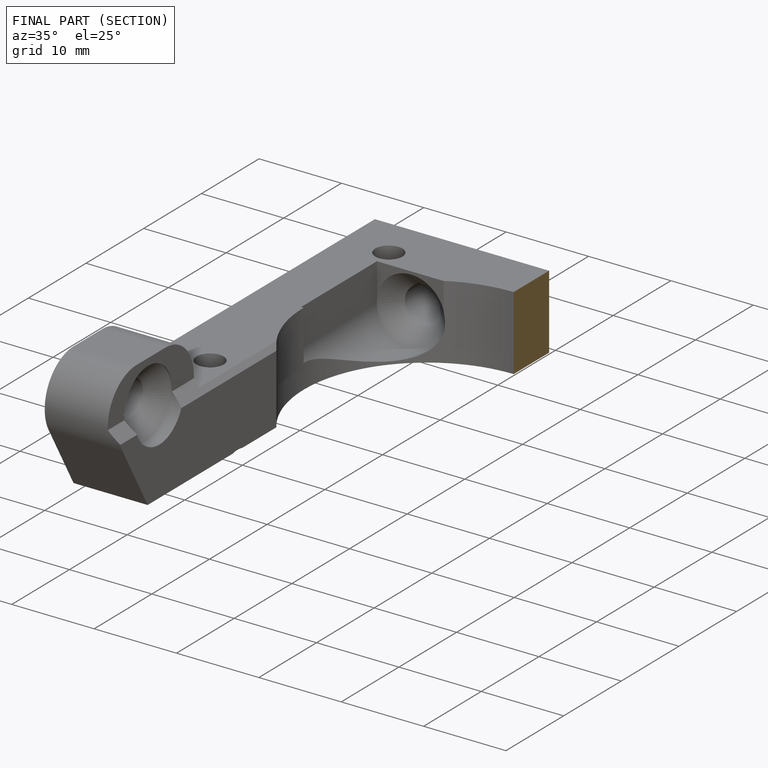
[diagram: finished part — half-section view (interior)]
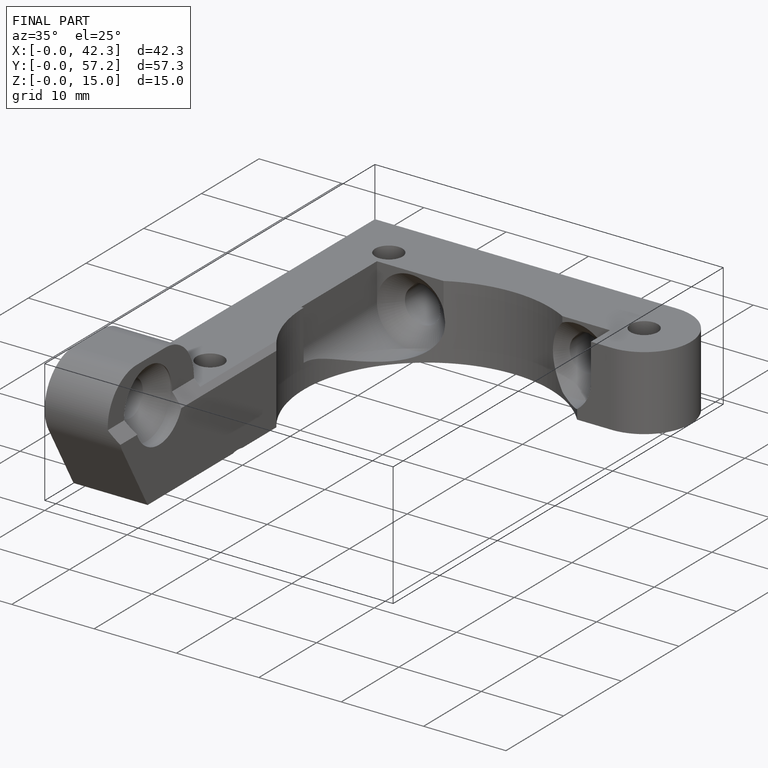
[diagram: finished part — iso view with bounding-box wireframe]
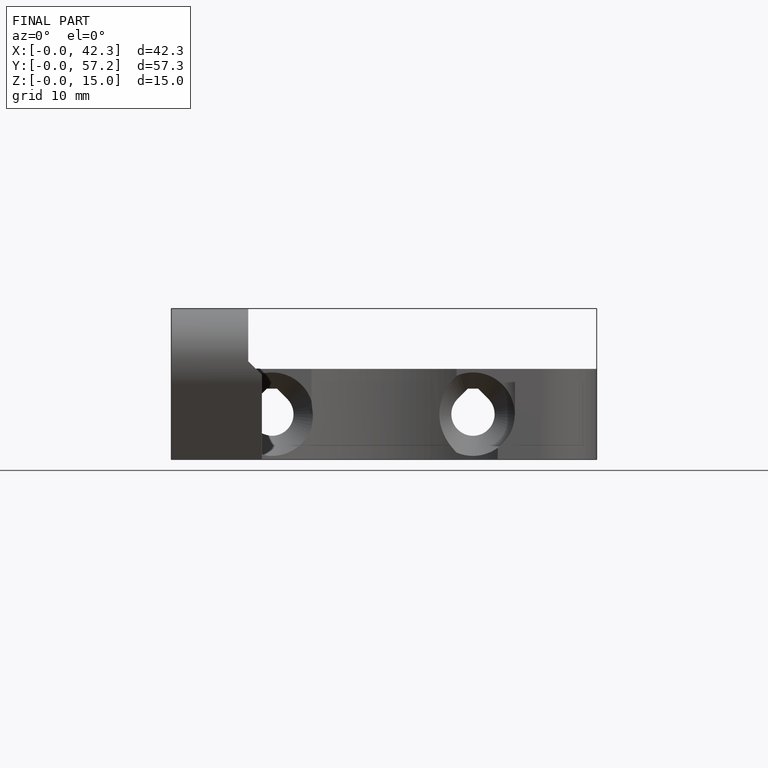
[diagram: finished part — front view with bounding-box wireframe]
